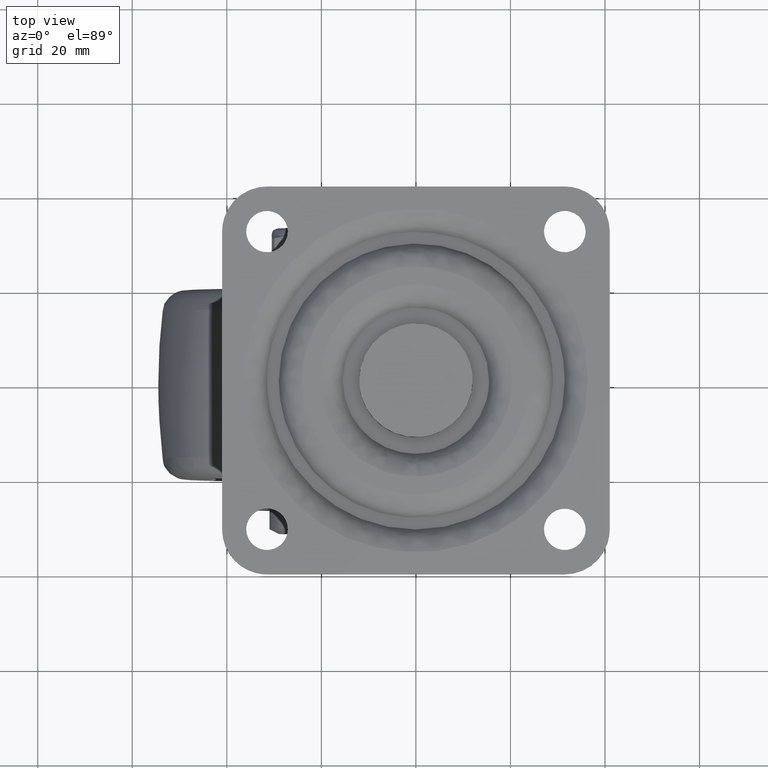
[diagram: clean part render]
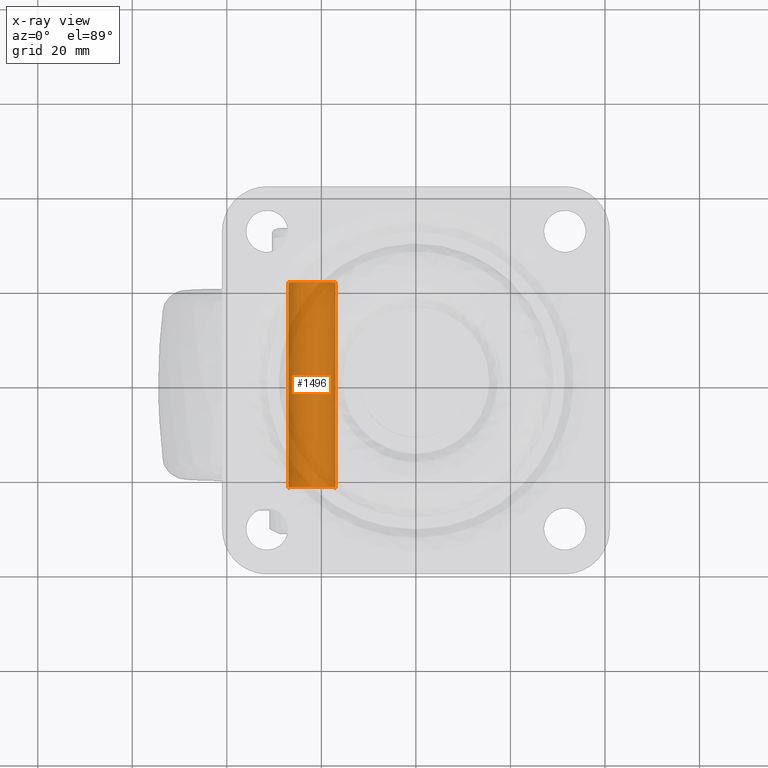
[diagram: x-ray — body ghosted, one internal face saturated and labeled with its STEP entity id]
A machine part, top view, then the same camera in x-ray: the body is ghosted and one INTERNAL B-rep face — a face not visible from any outside direction — is saturated and labeled: STEP entity #1496.
In plain terms, the highlighted face is a freeform B-spline surface patch.
Its self-contained STEP definition (entity closure, byte-faithful):
#1329=CARTESIAN_POINT('',(-4.961331069114298,21.699999999999999,-58.120640010506243));
#1330=VERTEX_POINT('',#1329);
#1346=CARTESIAN_POINT('',(-4.961331069125231,-21.699999999999999,-58.120640010418832));
#1347=VERTEX_POINT('',#1346);
#1348=CARTESIAN_POINT('',(-4.961331069114298,21.699999999999999,-58.120640010506243));
#1349=CARTESIAN_POINT('',(-4.961331069125231,-21.699999999999999,-58.120640010418832));
#1350=QUASI_UNIFORM_CURVE('',1,(#1348,#1349),.UNSPECIFIED.,.F.,.U.);
#1351=EDGE_CURVE('',#1330,#1347,#1350,.T.);
#1368=CARTESIAN_POINT('',(4.999809615318942,-21.699999999999999,-57.456367322288870));
#1369=VERTEX_POINT('',#1368);
#1385=CARTESIAN_POINT('',(4.999809615318741,21.699999999999999,-57.456367322265820));
#1386=VERTEX_POINT('',#1385);
#1387=CARTESIAN_POINT('',(4.999809615318741,21.699999999999999,-57.456367322265820));
#1388=CARTESIAN_POINT('',(4.999809615318942,-21.699999999999999,-57.456367322288870));
#1389=QUASI_UNIFORM_CURVE('',1,(#1387,#1388),.UNSPECIFIED.,.F.,.U.);
#1390=EDGE_CURVE('',#1386,#1369,#1389,.T.);
#1410=CARTESIAN_POINT('',(4.999809615320855,22.785000000000000,-57.456367322508129));
#1411=CARTESIAN_POINT('',(4.956176937828985,22.785000000000007,-52.456557707187280));
#1412=CARTESIAN_POINT('',(-0.043632677491869,22.785000000000000,-52.500190384679136));
#1413=CARTESIAN_POINT('',(-5.043442292812725,22.785000000000007,-52.543823062171008));
#1414=CARTESIAN_POINT('',(-4.999809615320855,22.785000000000000,-57.543632677491871));
#1415=CARTESIAN_POINT('',(-4.997282156301378,22.785000000000000,-57.833250794790857));
#1416=CARTESIAN_POINT('',(-4.961331069127693,22.785000000000004,-58.120640010399150));
#1417=CARTESIAN_POINT('',(4.999809615320855,-22.812125000000002,-57.456367322508129));
#1418=CARTESIAN_POINT('',(4.956176937828985,-22.812124999999998,-52.456557707187280));
#1419=CARTESIAN_POINT('',(-0.043632677491869,-22.812125000000002,-52.500190384679136));
#1420=CARTESIAN_POINT('',(-5.043442292812725,-22.812124999999998,-52.543823062171008));
#1421=CARTESIAN_POINT('',(-4.999809615320855,-22.812125000000002,-57.543632677491871));
#1422=CARTESIAN_POINT('',(-4.997282156301378,-22.812125000000005,-57.833250794790857));
#1423=CARTESIAN_POINT('',(-4.961331069127693,-22.812125000000005,-58.120640010399150));
#1431=(BOUNDED_SURFACE()B_SPLINE_SURFACE(2,1,((#1410,#1417),(#1411,#1418),(#1412,#1419),(#1413,#1420),(#1414,#1421),(#1415,#1422),(#1416,#1423)),.UNSPECIFIED.,.F.,.F.,.U.)B_SPLINE_SURFACE_WITH_KNOTS((3,2,2,3),(2,2),(0.0,8.284271247461902,16.568542494923800,17.231284194720761),(0.0,45.597125000000013),.UNSPECIFIED.)GEOMETRIC_REPRESENTATION_ITEM()RATIONAL_B_SPLINE_SURFACE(((1.0,1.0),(0.707106781186548,0.707106781186548),(1.0,1.0),(0.707106781186548,0.707106781186548),(1.0,1.0),(0.976568542494924,0.976568542494924),(0.956886118190660,0.956886118190660)))REPRESENTATION_ITEM('')SURFACE());
#1432=CARTESIAN_POINT('',(0.0,21.699999999999999,-52.500000000000007));
#1433=VERTEX_POINT('',#1432);
#1434=CARTESIAN_POINT('',(0.0,21.699999999999999,-52.500000000000007));
#1435=CARTESIAN_POINT('',(-5.000000000000001,21.699999999999996,-52.500000000000007));
#1436=CARTESIAN_POINT('',(-5.0,21.699999999999999,-57.500000000000000));
#1437=CARTESIAN_POINT('',(-5.0,21.699999999999996,-57.811524637775811));
#1438=CARTESIAN_POINT('',(-4.961331069114299,21.699999999999996,-58.120640010506243));
#1446=(BOUNDED_CURVE()B_SPLINE_CURVE(2,(#1434,#1435,#1436,#1437,#1438),.UNSPECIFIED.,.F.,.U.)B_SPLINE_CURVE_WITH_KNOTS((3,2,3),(0.500000000000000,0.750000000000000,0.771473928977981),.UNSPECIFIED.)CURVE()GEOMETRIC_REPRESENTATION_ITEM()RATIONAL_B_SPLINE_CURVE((1.0,0.707106781186548,1.0,0.974841727284271,0.954005430260591))REPRESENTATION_ITEM(''));
#1447=EDGE_CURVE('',#1433,#1330,#1446,.T.);
#1448=ORIENTED_EDGE('',*,*,#1447,.F.);
#1449=CARTESIAN_POINT('',(4.999809615318741,21.700000000000006,-57.456367322265820));
#1450=CARTESIAN_POINT('',(4.956556052494442,21.699999999999996,-52.500000000000007));
#1451=CARTESIAN_POINT('',(0.0,21.699999999999999,-52.500000000000007));
#1459=(BOUNDED_CURVE()B_SPLINE_CURVE(2,(#1449,#1450,#1451),.UNSPECIFIED.,.F.,.U.)B_SPLINE_CURVE_WITH_KNOTS((3,3),(0.251539894352060,0.500000000000000),.UNSPECIFIED.)CURVE()GEOMETRIC_REPRESENTATION_ITEM()RATIONAL_B_SPLINE_CURVE((0.996414028060894,0.708910879640178,1.0))REPRESENTATION_ITEM(''));
#1460=EDGE_CURVE('',#1386,#1433,#1459,.T.);
#1461=ORIENTED_EDGE('',*,*,#1460,.F.);
#1462=ORIENTED_EDGE('',*,*,#1390,.T.);
#1463=CARTESIAN_POINT('',(0.0,-21.699999999999999,-52.500000000000007));
#1464=VERTEX_POINT('',#1463);
#1465=CARTESIAN_POINT('',(0.0,-21.699999999999999,-52.500000000000007));
#1466=CARTESIAN_POINT('',(4.956556052540145,-21.699999999999996,-52.500000000000014));
#1467=CARTESIAN_POINT('',(4.999809615318942,-21.700000000000003,-57.456367322288870));
#1475=(BOUNDED_CURVE()B_SPLINE_CURVE(2,(#1465,#1466,#1467),.UNSPECIFIED.,.F.,.U.)B_SPLINE_CURVE_WITH_KNOTS((3,3),(0.0,0.248460105649564),.UNSPECIFIED.)CURVE()GEOMETRIC_REPRESENTATION_ITEM()RATIONAL_B_SPLINE_CURVE((1.0,0.708910879638275,0.996414028064652))REPRESENTATION_ITEM(''));
#1476=EDGE_CURVE('',#1464,#1369,#1475,.T.);
#1477=ORIENTED_EDGE('',*,*,#1476,.F.);
#1478=CARTESIAN_POINT('',(-4.961331069125231,-21.700000000000003,-58.120640010418825));
#1479=CARTESIAN_POINT('',(-4.999999999999999,-21.699999999999999,-57.811524637687377));
#1480=CARTESIAN_POINT('',(-5.0,-21.699999999999999,-57.500000000000000));
#1481=CARTESIAN_POINT('',(-5.000000000000001,-21.699999999999996,-52.500000000000007));
#1482=CARTESIAN_POINT('',(0.0,-21.699999999999999,-52.500000000000007));
#1490=(BOUNDED_CURVE()B_SPLINE_CURVE(2,(#1478,#1479,#1480,#1481,#1482),.UNSPECIFIED.,.F.,.U.)B_SPLINE_CURVE_WITH_KNOTS((3,2,3),(0.728526071027961,0.750000000000000,1.0),.UNSPECIFIED.)CURVE()GEOMETRIC_REPRESENTATION_ITEM()RATIONAL_B_SPLINE_CURVE((0.954005430272122,0.974841727291232,1.0,0.707106781186548,1.0))REPRESENTATION_ITEM(''));
#1491=EDGE_CURVE('',#1347,#1464,#1490,.T.);
#1492=ORIENTED_EDGE('',*,*,#1491,.F.);
#1493=ORIENTED_EDGE('',*,*,#1351,.F.);
#1494=EDGE_LOOP('',(#1448,#1461,#1462,#1477,#1492,#1493));
#1495=FACE_OUTER_BOUND('',#1494,.T.);
#1496=ADVANCED_FACE('',(#1495),#1431,.F.);